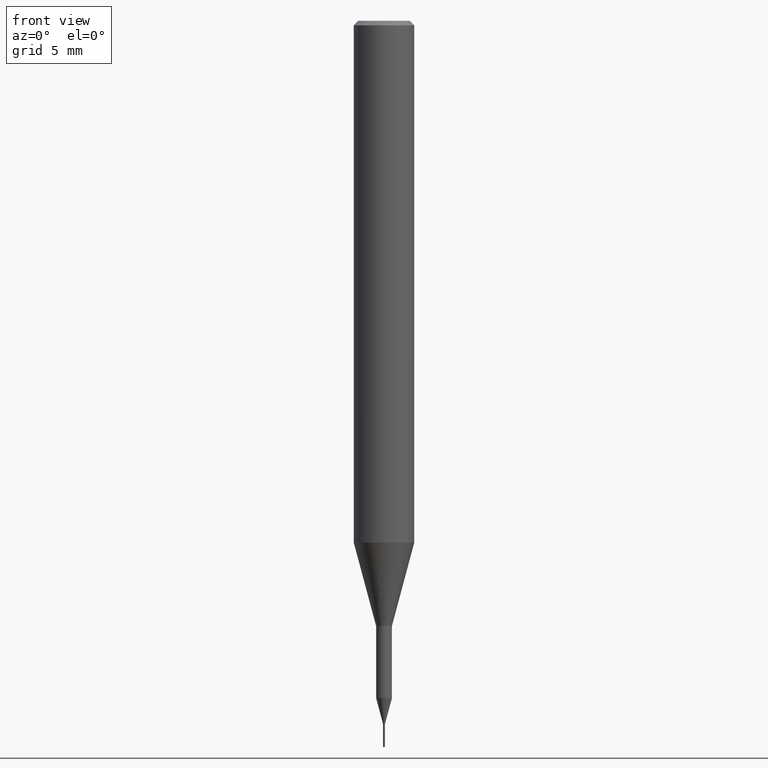
[diagram: clean part render]
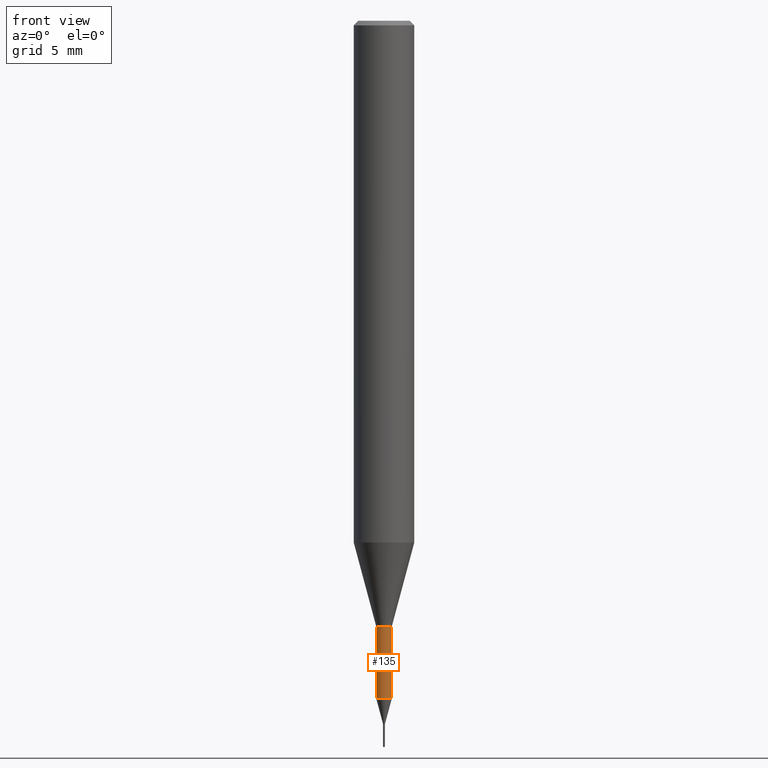
[diagram: same view with one face highlighted and labeled with its STEP entity id]
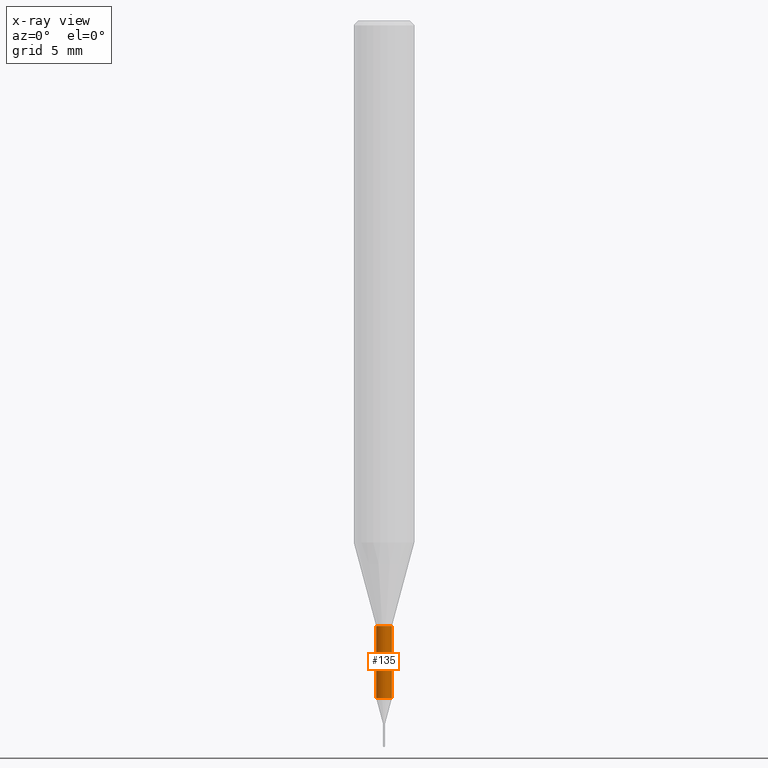
[diagram: x-ray of the same camera — body ghosted, the highlighted face saturated]
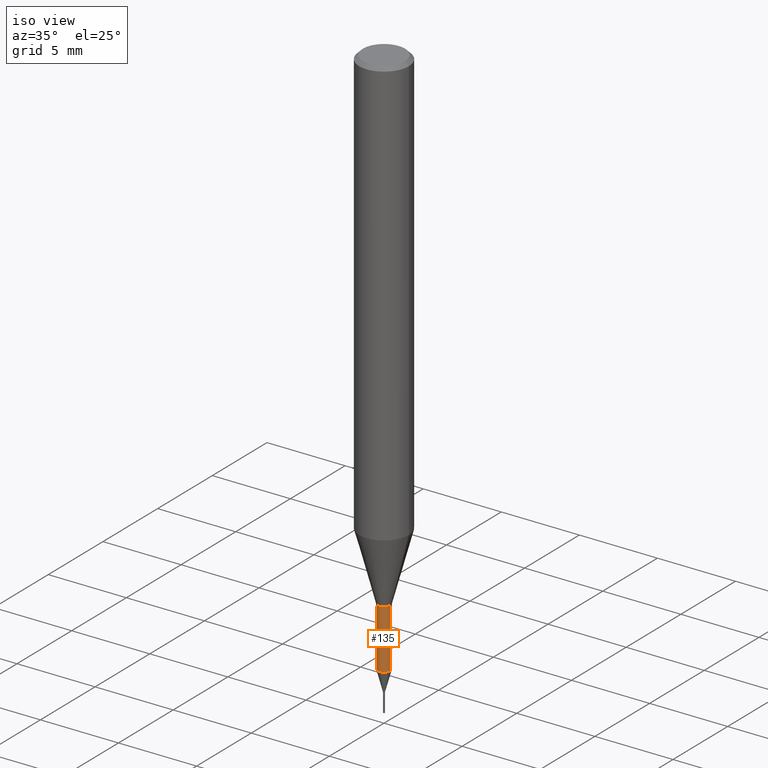
[diagram: same view with one face highlighted and labeled with its STEP entity id]
A machine part, front view. The second image highlights one B-rep face of the part: STEP entity #135.
The next image is the same camera in x-ray: the body ghosted, the highlighted face saturated — about 0% of this face is hidden behind the body in this view.
A second angle (iso view) of the same face is appended — the face is thin or edge-on in the first view.
In plain terms, the highlighted cylindrical surface (edge-blend (fillet) strip) has radius 0.4127 mm, axis along (-0, 0, 1).
Its self-contained STEP definition (entity closure, byte-faithful):
#6 = VECTOR ( 'NONE', #485, 39.37007874015748143 ) ;
#20 = VERTEX_POINT ( 'NONE', #454 ) ;
#28 = VERTEX_POINT ( 'NONE', #106 ) ;
#53 = CIRCLE ( 'NONE', #301, 0.01624999999999999709 ) ;
#84 = VERTEX_POINT ( 'NONE', #237 ) ;
#100 = DIRECTION ( 'NONE',  ( 1.000000000000000000, -6.982962677686267499E-15, 4.876176775795936353E-29 ) ) ;
#106 = CARTESIAN_POINT ( 'NONE',  ( -0.01624999999999999709, -4.768484712498295341E-15, -1.398818275992143922 ) ) ;
#118 = LINE ( 'NONE', #384, #526 ) ;
#134 = CARTESIAN_POINT ( 'NONE',  ( 0.000000000000000000, 0.000000000000000000, 0.000000000000000000 ) ) ;
#135 = ADVANCED_FACE ( 'NONE', ( #506 ), #140, .T. ) ;
#140 = CYLINDRICAL_SURFACE ( 'NONE', #306, 0.01624999999999999709 ) ;
#167 = LINE ( 'NONE', #260, #6 ) ;
#180 = EDGE_CURVE ( 'NONE', #540, #84, #118, .T. ) ;
#191 = ORIENTED_EDGE ( 'NONE', *, *, #310, .F. ) ;
#197 = CIRCLE ( 'NONE', #536, 0.01624999999999999709 ) ;
#212 = DIRECTION ( 'NONE',  ( -2.445468806185136597E-29, 3.491481338843145583E-15, 1.000000000000000000 ) ) ;
#216 = CARTESIAN_POINT ( 'NONE',  ( 3.420766459460459311E-29, -4.883947907059311527E-15, -1.398818275992143922 ) ) ;
#220 = EDGE_LOOP ( 'NONE', ( #569, #252, #355, #191 ) ) ;
#237 = CARTESIAN_POINT ( 'NONE',  ( 0.01624999999999999709, -4.477824817066334148E-15, -1.250000000000000000 ) ) ;
#252 = ORIENTED_EDGE ( 'NONE', *, *, #451, .T. ) ;
#260 = CARTESIAN_POINT ( 'NONE',  ( -0.01624999999999999709, 1.154631945610162595E-16, -7.993269521664220284E-31 ) ) ;
#274 = CARTESIAN_POINT ( 'NONE',  ( 0.01624999999999999709, -4.997421050571713203E-15, -1.398818275992143922 ) ) ;
#301 = AXIS2_PLACEMENT_3D ( 'NONE', #303, #212, #395 ) ;
#303 = CARTESIAN_POINT ( 'NONE',  ( 3.056836007731421306E-29, -4.364351673553932471E-15, -1.250000000000000000 ) ) ;
#306 = AXIS2_PLACEMENT_3D ( 'NONE', #134, #503, #100 ) ;
#307 = DIRECTION ( 'NONE',  ( -2.445468806185136597E-29, 3.491481338843145583E-15, 1.000000000000000000 ) ) ;
#310 = EDGE_CURVE ( 'NONE', #20, #84, #53, .T. ) ;
#355 = ORIENTED_EDGE ( 'NONE', *, *, #180, .T. ) ;
#376 = EDGE_CURVE ( 'NONE', #28, #20, #167, .T. ) ;
#384 = CARTESIAN_POINT ( 'NONE',  ( 0.01624999999999999709, -1.134731435124018242E-16, 7.923787260668394963E-31 ) ) ;
#395 = DIRECTION ( 'NONE',  ( 1.000000000000000000, -6.982962677686288799E-15, 0.000000000000000000 ) ) ;
#451 = EDGE_CURVE ( 'NONE', #28, #540, #197, .T. ) ;
#454 = CARTESIAN_POINT ( 'NONE',  ( -0.01624999999999999709, -4.508686595745605419E-15, -1.250000000000000000 ) ) ;
#485 = DIRECTION ( 'NONE',  ( -2.445468806185136877E-29, 3.491481338843145188E-15, 1.000000000000000000 ) ) ;
#488 = DIRECTION ( 'NONE',  ( 1.000000000000000000, -6.982962677686259611E-15, 0.000000000000000000 ) ) ;
#503 = DIRECTION ( 'NONE',  ( -2.445468806185136597E-29, 3.491481338843145583E-15, 1.000000000000000000 ) ) ;
#506 = FACE_OUTER_BOUND ( 'NONE', #220, .T. ) ;
#522 = DIRECTION ( 'NONE',  ( -2.445468806185136877E-29, 3.491481338843145188E-15, 1.000000000000000000 ) ) ;
#526 = VECTOR ( 'NONE', #522, 39.37007874015748143 ) ;
#536 = AXIS2_PLACEMENT_3D ( 'NONE', #216, #307, #488 ) ;
#540 = VERTEX_POINT ( 'NONE', #274 ) ;
#569 = ORIENTED_EDGE ( 'NONE', *, *, #376, .F. ) ;